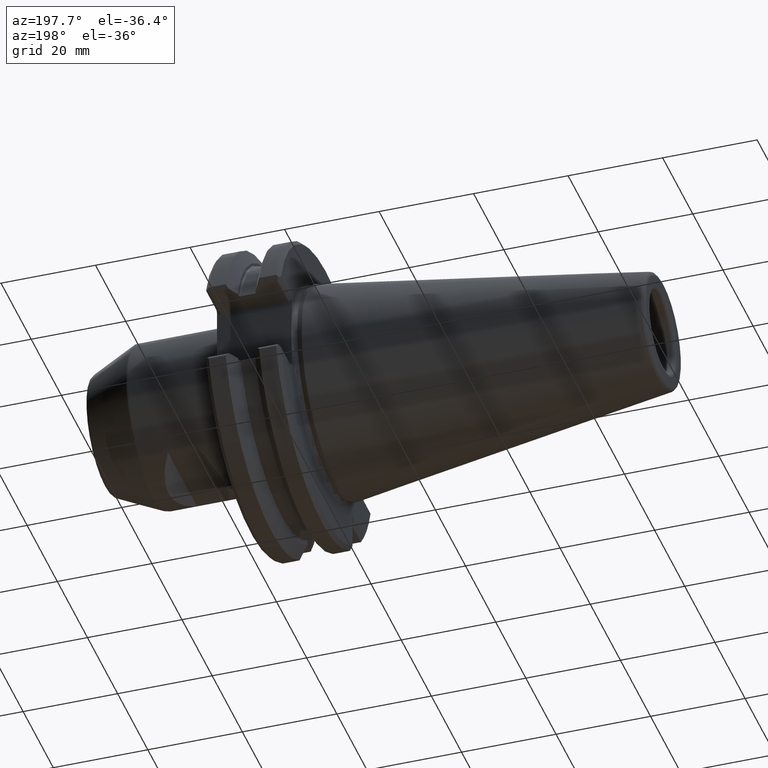
[diagram: clean part render]
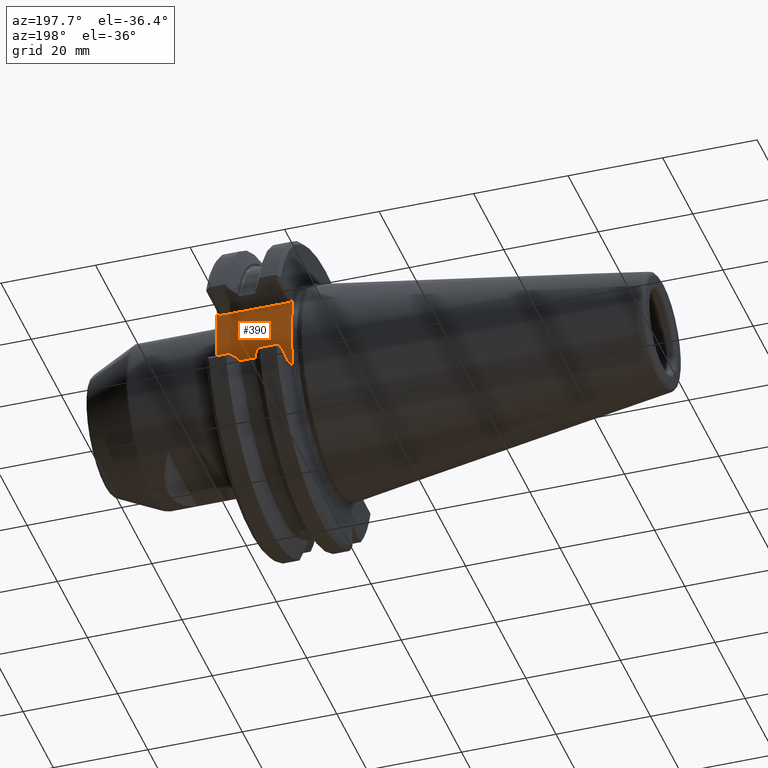
[diagram: same view with one face highlighted and labeled with its STEP entity id]
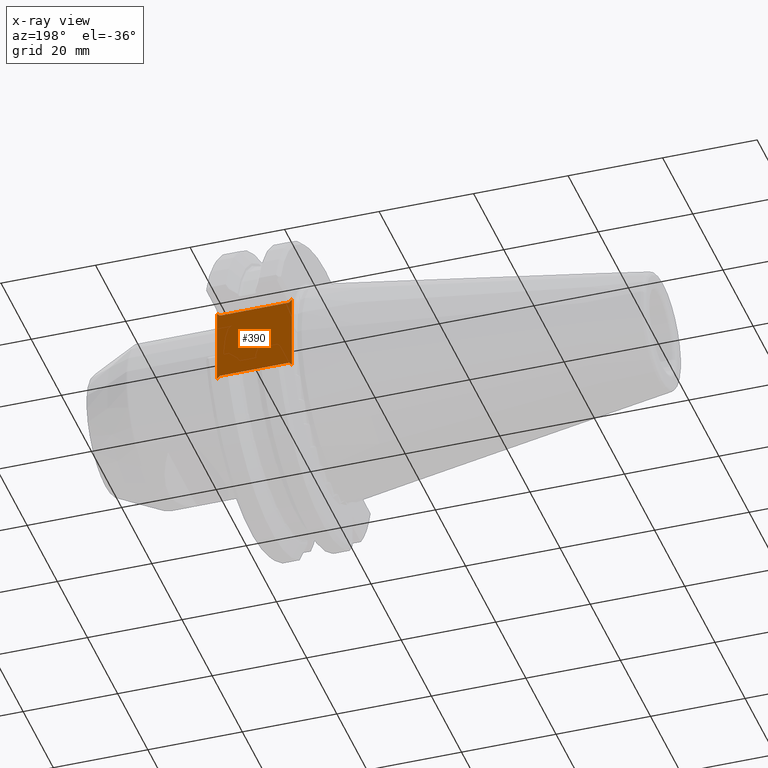
[diagram: x-ray of the same camera — body ghosted, the highlighted face saturated]
A machine part, auxiliary view. The second image highlights one B-rep face of the part: STEP entity #390.
The next image is the same camera in x-ray: the body ghosted, the highlighted face saturated — about 0% of this face is hidden behind the body in this view.
In plain terms, the highlighted planar face has unit normal (0, -1, 0).
Its self-contained STEP definition (entity closure, byte-faithful):
#390 = ADVANCED_FACE( '', ( #817 ), #818, .F. );
#817 = FACE_OUTER_BOUND( '', #1249, .T. );
#818 = PLANE( '', #1250 );
#1249 = EDGE_LOOP( '', ( #2258, #2259, #2260, #2261, #2262, #2263, #2264, #2265, #2266, #2267 ) );
#1250 = AXIS2_PLACEMENT_3D( '', #2268, #2269, #2270 );
#2258 = ORIENTED_EDGE( '', *, *, #2380, .T. );
#2259 = ORIENTED_EDGE( '', *, *, #2760, .T. );
#2260 = ORIENTED_EDGE( '', *, *, #2596, .T. );
#2261 = ORIENTED_EDGE( '', *, *, #2399, .T. );
#2262 = ORIENTED_EDGE( '', *, *, #2594, .T. );
#2263 = ORIENTED_EDGE( '', *, *, #2483, .T. );
#2264 = ORIENTED_EDGE( '', *, *, #2702, .T. );
#2265 = ORIENTED_EDGE( '', *, *, #2641, .T. );
#2266 = ORIENTED_EDGE( '', *, *, #2761, .T. );
#2267 = ORIENTED_EDGE( '', *, *, #2545, .T. );
#2268 = CARTESIAN_POINT( '', ( 128.416715471795, 22.4500000000000, -8.05000000000000 ) );
#2269 = DIRECTION( '', ( 0.000000000000000, -1.00000000000000, 0.000000000000000 ) );
#2270 = DIRECTION( '', ( 0.000000000000000, 0.000000000000000, -1.00000000000000 ) );
#2380 = EDGE_CURVE( '', #2803, #2808, #2810, .T. );
#2399 = EDGE_CURVE( '', #2842, #2843, #2844, .T. );
#2483 = EDGE_CURVE( '', #2979, #2981, #2983, .T. );
#2545 = EDGE_CURVE( '', #3073, #2803, #3076, .T. );
#2594 = EDGE_CURVE( '', #2843, #2979, #3152, .T. );
#2596 = EDGE_CURVE( '', #3154, #2842, #3155, .T. );
#2641 = EDGE_CURVE( '', #3215, #3217, #3219, .T. );
#2702 = EDGE_CURVE( '', #2981, #3215, #3300, .F. );
#2760 = EDGE_CURVE( '', #2808, #3154, #3365, .T. );
#2761 = EDGE_CURVE( '', #3217, #3073, #3366, .T. );
#2803 = VERTEX_POINT( '', #3426 );
#2808 = VERTEX_POINT( '', #3432 );
#2810 = LINE( '', #3434, #3435 );
#2842 = VERTEX_POINT( '', #3478 );
#2843 = VERTEX_POINT( '', #3479 );
#2844 = LINE( '', #3480, #3481 );
#2979 = VERTEX_POINT( '', #3688 );
#2981 = VERTEX_POINT( '', #3690 );
#2983 = LINE( '', #3692, #3693 );
#3073 = VERTEX_POINT( '', #3825 );
#3076 = LINE( '', #3829, #3830 );
#3152 = LINE( '', #4014, #4015 );
#3154 = VERTEX_POINT( '', #4017 );
#3155 = LINE( '', #4018, #4019 );
#3215 = VERTEX_POINT( '', #4112 );
#3217 = VERTEX_POINT( '', #4114 );
#3219 = LINE( '', #4116, #4117 );
#3300 = LINE( '', #4327, #4328 );
#3365 = LINE( '', #4436, #4437 );
#3366 = LINE( '', #4438, #4439 );
#3426 = CARTESIAN_POINT( '', ( 18.4571067811866, 22.4500000000000, -7.55000000000000 ) );
#3432 = CARTESIAN_POINT( '', ( 3.79289321881344, 22.4500000000000, -7.55000000000000 ) );
#3434 = CARTESIAN_POINT( '', ( 4.00000000000000, 22.4500000000000, -7.55000000000000 ) );
#3435 = VECTOR( '', #4479, 1000.00000000000 );
#3478 = CARTESIAN_POINT( '', ( 3.20000000000000, 22.4500000000000, -4.47248078727100 ) );
#3479 = CARTESIAN_POINT( '', ( 3.20000000000000, 22.4500000000000, 4.47248078727100 ) );
#3480 = CARTESIAN_POINT( '', ( 3.20000000000000, 22.4500000000000, -8.05000000000000 ) );
#3481 = VECTOR( '', #4506, 1000.00000000000 );
#3688 = CARTESIAN_POINT( '', ( 3.20000000000000, 22.4500000000000, 8.14289321881347 ) );
#3690 = CARTESIAN_POINT( '', ( 3.79289321881347, 22.4500000000000, 7.55000000000000 ) );
#3692 = CARTESIAN_POINT( '', ( 73.9048043453044, 22.4500000000000, -62.5619111264906 ) );
#3693 = VECTOR( '', #4610, 1000.00000000000 );
#3825 = CARTESIAN_POINT( '', ( 19.0500000000000, 22.4500000000000, -8.14289321881345 ) );
#3829 = CARTESIAN_POINT( '', ( 73.6869111264909, 22.4500000000000, -62.7798043453041 ) );
#3830 = VECTOR( '', #4687, 1000.00000000000 );
#4014 = CARTESIAN_POINT( '', ( 3.20000000000000, 22.4500000000000, -8.05000000000000 ) );
#4015 = VECTOR( '', #4743, 1000.00000000000 );
#4017 = CARTESIAN_POINT( '', ( 3.20000000000000, 22.4500000000000, -8.14289321881343 ) );
#4018 = CARTESIAN_POINT( '', ( 3.20000000000000, 22.4500000000000, -8.05000000000000 ) );
#4019 = VECTOR( '', #4747, 1000.00000000000 );
#4112 = CARTESIAN_POINT( '', ( 18.4571067811866, 22.4500000000000, 7.55000000000000 ) );
#4114 = CARTESIAN_POINT( '', ( 19.0500000000000, 22.4500000000000, 8.14289321881345 ) );
#4116 = CARTESIAN_POINT( '', ( 65.6369111264909, 22.4500000000000, 54.7298043453041 ) );
#4117 = VECTOR( '', #4798, 1000.00000000000 );
#4327 = CARTESIAN_POINT( '', ( 18.2500000000000, 22.4500000000000, 7.55000000000000 ) );
#4328 = VECTOR( '', #4841, 1000.00000000000 );
#4436 = CARTESIAN_POINT( '', ( 65.8548043453044, 22.4500000000000, 54.5119111264907 ) );
#4437 = VECTOR( '', #4876, 1000.00000000000 );
#4438 = CARTESIAN_POINT( '', ( 19.0500000000000, 22.4500000000000, 31.9250000000000 ) );
#4439 = VECTOR( '', #4877, 1000.00000000000 );
#4479 = DIRECTION( '', ( -1.00000000000000, 0.000000000000000, 0.000000000000000 ) );
#4506 = DIRECTION( '', ( 0.000000000000000, 0.000000000000000, 1.00000000000000 ) );
#4610 = DIRECTION( '', ( 0.707106781186549, 0.000000000000000, -0.707106781186546 ) );
#4687 = DIRECTION( '', ( -0.707106781186549, 0.000000000000000, 0.707106781186546 ) );
#4743 = DIRECTION( '', ( 0.000000000000000, 0.000000000000000, 1.00000000000000 ) );
#4747 = DIRECTION( '', ( 0.000000000000000, 0.000000000000000, 1.00000000000000 ) );
#4798 = DIRECTION( '', ( 0.707106781186549, 0.000000000000000, 0.707106781186546 ) );
#4841 = DIRECTION( '', ( -1.00000000000000, 0.000000000000000, 0.000000000000000 ) );
#4876 = DIRECTION( '', ( -0.707106781186549, 0.000000000000000, -0.707106781186545 ) );
#4877 = DIRECTION( '', ( 0.000000000000000, 0.000000000000000, -1.00000000000000 ) );